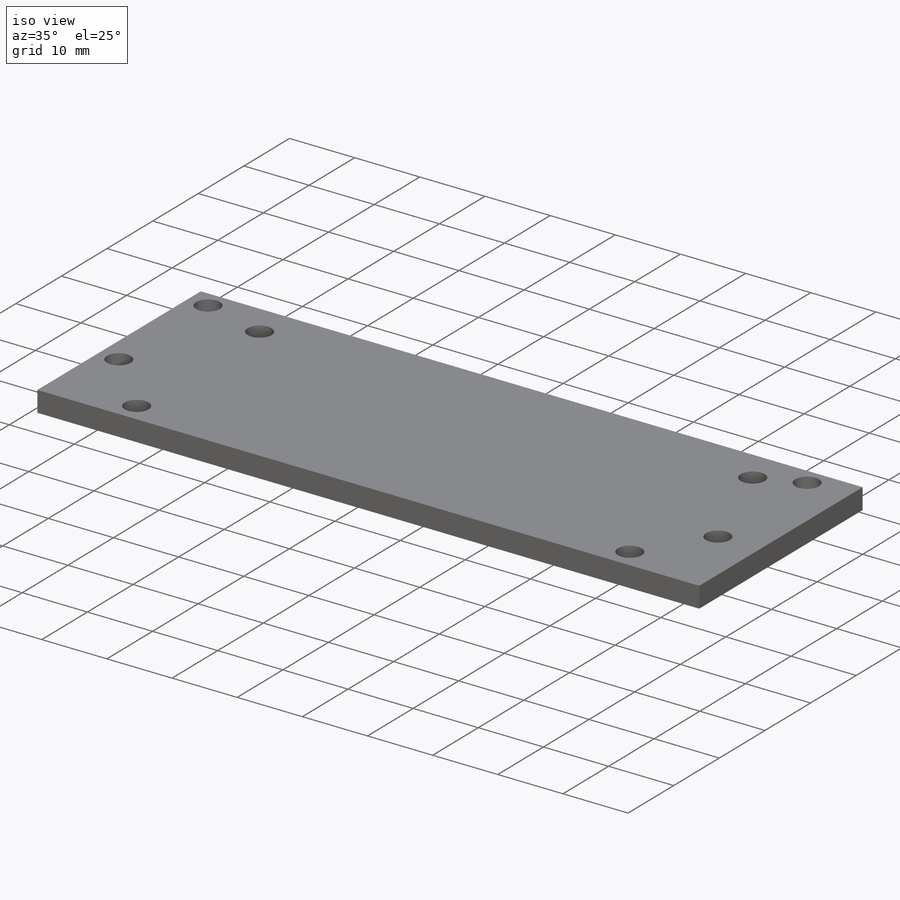
[diagram: iso view]
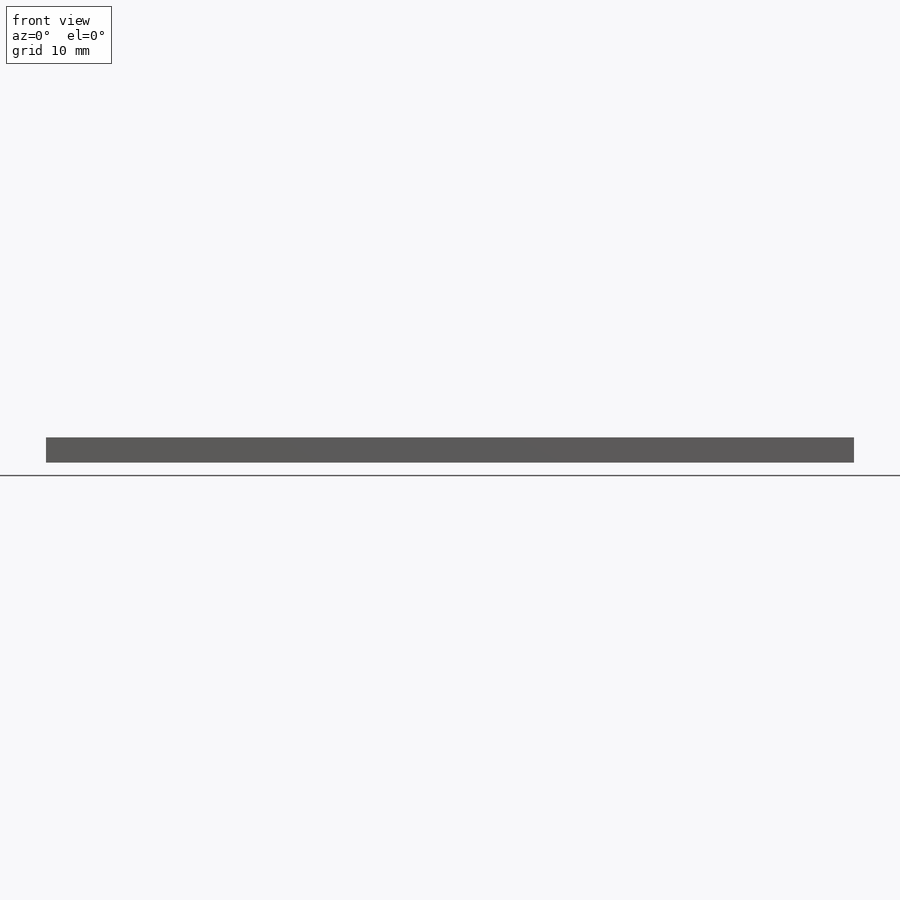
[diagram: front view]
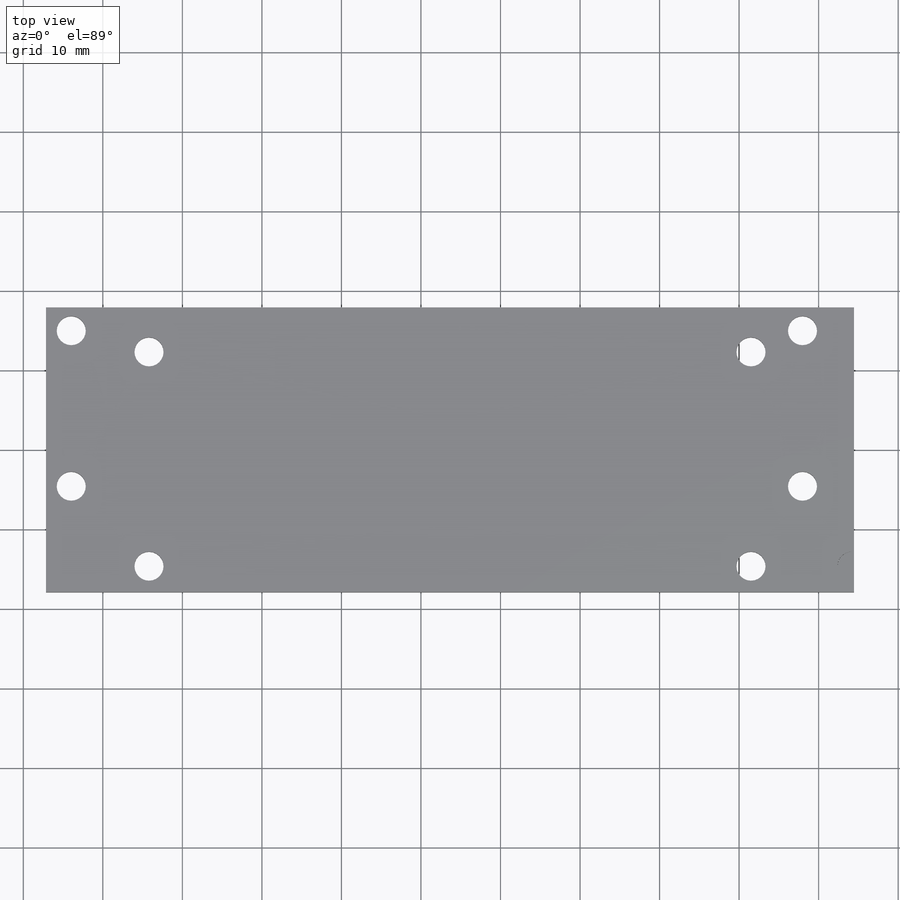
[diagram: top view]
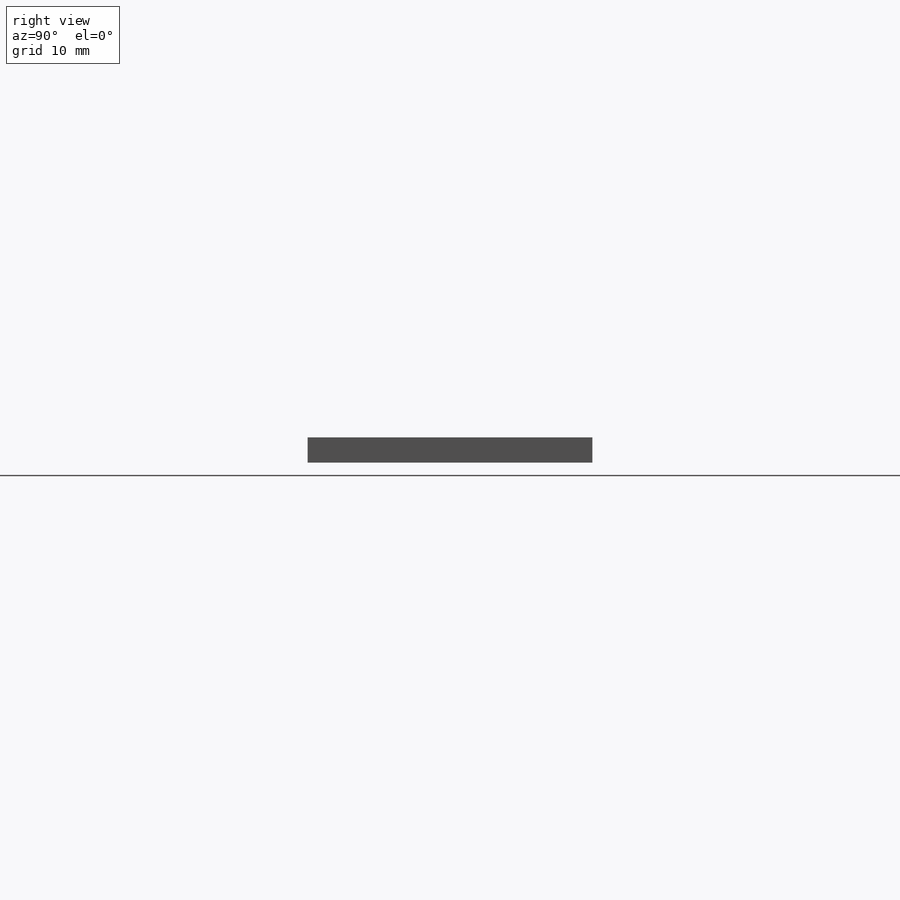
[diagram: right view]
SOLIDWORKS PART (.sldprt)
format: sldprt  version: not decoded by parser v0  size: 289,792 bytes
history: native  units: mm
features: sketch x8, cut_extrude x4, extrude x3, material x1 (+12 scaffold rows collapsed)
feature tree (28):
  scaffold x12  (default folders/planes/origin — collapsed)
  material  "Material <not specified>"
  sketch  "Sketch1"  dims[c1.D1=~39.329536mm c1.D2=~115.77286mm c2.D1=35.814mm c2.D2=114.3mm]
  extrude  "Boss-Extrude1"  Depth=3.175mm
  sketch  "Sketch3"  dims[c1.D3=3.6576mm c1.D5=3.6576mm c1.D7=3.6576mm c1.D9=~10.749708mm c1.D10=3.6576mm c1.D1=50.8mm c1.D2=2.921mm c1.D4=19.558mm c1.D6=13.208mm c2.D7=~39.558917mm c2.D8=5.588mm c2.D9=26.9494mm]
  cut_extrude  "Cut-Extrude2"  [1 undecoded]
  sketch  "Sketch4"  dims[c1.D1=35.814mm c1.D2=~12.732711mm c2.D1=12.7mm]
  cut_extrude  "Cut-Extrude3"  [1 undecoded]
  sketch  "Sketch5"  dims[D1=~67.745713mm]
  cut_extrude  "Cut-Extrude4"  [1 undecoded]
  sketch  "Sketch6"  dims[D1=~0.469333mm]
  sketch  "Sketch8"  dims[D1=~0.179605mm]
  extrude  "Boss-Extrude4"  Depth=3.175mm
  sketch  "Sketch9"  dims[D3=3.6576mm D4=3.6576mm D1=3.302mm D2=3.302mm]
  cut_extrude  "Cut-Extrude5"  [1 undecoded]
  sketch  "Sketch10"  dims[D1=3.6576mm]
  extrude  "Boss-Extrude5"  Depth=3.175mm
decode coverage: 11 of 15 modeling features carry decoded parameters
note: ~ marks probable driven/reference dimensions
note: 4 parameter values undecoded
summary: no parameter record found for 4 features
note: suppression state not decoded; provenance and decode notes live in map.json
